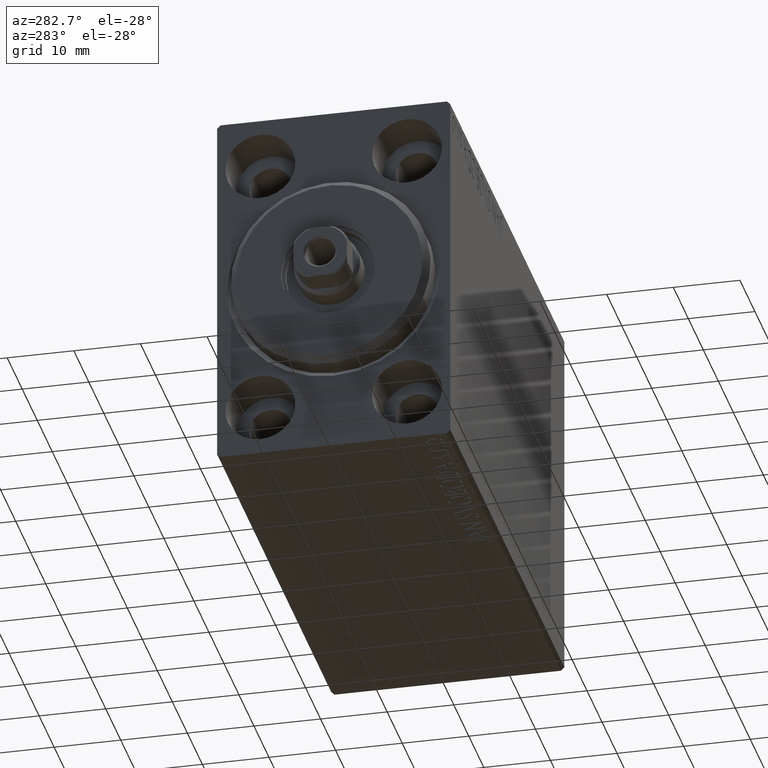
[diagram: clean part render]
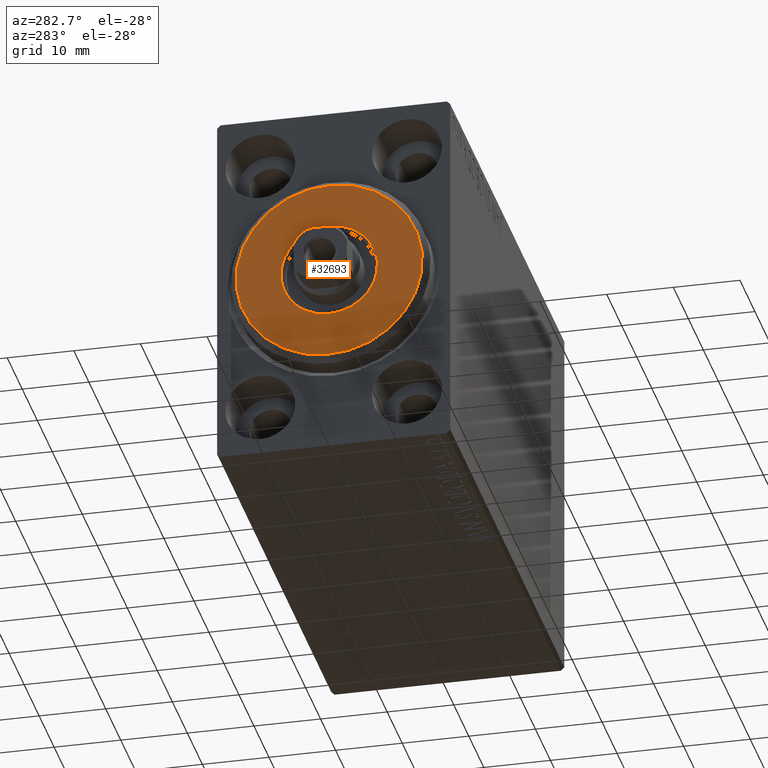
[diagram: same view with one face highlighted and labeled with its STEP entity id]
A machine part, auxiliary view. The second image highlights one B-rep face of the part: STEP entity #32693.
In plain terms, the highlighted planar face has unit normal (-1, 0, 0).
Its self-contained STEP definition (entity closure, byte-faithful):
#3 = CARTESIAN_POINT ( 'NONE',  ( 3.000000000000000000, 0.000000000000000000, 0.000000000000000000 ) ) ;
#396 = DIRECTION ( 'NONE',  ( 1.000000000000000000, -0.000000000000000000, 0.000000000000000000 ) ) ;
#2650 = ORIENTED_EDGE ( 'NONE', *, *, #21428, .T. ) ;
#3302 = EDGE_LOOP ( 'NONE', ( #18502, #29474 ) ) ;
#3816 = VERTEX_POINT ( 'NONE', #20330 ) ;
#3940 = FACE_BOUND ( 'NONE', #3302, .T. ) ;
#4500 = CARTESIAN_POINT ( 'NONE',  ( 3.000000000000000000, 8.878689293818310074E-16, 7.249999999999999112 ) ) ;
#4746 = DIRECTION ( 'NONE',  ( 1.000000000000000000, 0.000000000000000000, 0.000000000000000000 ) ) ;
#5832 = AXIS2_PLACEMENT_3D ( 'NONE', #3, #23322, #33949 ) ;
#7211 = CIRCLE ( 'NONE', #34139, 13.99999999999999645 ) ;
#9997 = VERTEX_POINT ( 'NONE', #4500 ) ;
#13749 = CARTESIAN_POINT ( 'NONE',  ( 3.000000000000000000, 0.000000000000000000, 0.000000000000000000 ) ) ;
#14147 = CARTESIAN_POINT ( 'NONE',  ( 3.000000000000000000, 0.000000000000000000, 0.000000000000000000 ) ) ;
#14338 = CIRCLE ( 'NONE', #5832, 7.249999999999999112 ) ;
#14368 = DIRECTION ( 'NONE',  ( 0.000000000000000000, 0.000000000000000000, -1.000000000000000000 ) ) ;
#14400 = AXIS2_PLACEMENT_3D ( 'NONE', #14627, #42359, #21736 ) ;
#14627 = CARTESIAN_POINT ( 'NONE',  ( 3.000000000000000000, 0.000000000000000000, 0.000000000000000000 ) ) ;
#15602 = CARTESIAN_POINT ( 'NONE',  ( 3.000000000000000000, 1.775737858763662015E-15, -13.99999999999999645 ) ) ;
#17320 = EDGE_CURVE ( 'NONE', #20609, #9997, #22114, .T. ) ;
#17775 = EDGE_CURVE ( 'NONE', #3816, #24592, #7211, .T. ) ;
#18051 = CARTESIAN_POINT ( 'NONE',  ( 3.000000000000000000, 0.000000000000000000, 0.000000000000000000 ) ) ;
#18502 = ORIENTED_EDGE ( 'NONE', *, *, #17320, .F. ) ;
#19148 = EDGE_CURVE ( 'NONE', #9997, #20609, #14338, .T. ) ;
#19675 = CARTESIAN_POINT ( 'NONE',  ( 3.000000000000000000, 0.000000000000000000, -7.249999999999999112 ) ) ;
#20330 = CARTESIAN_POINT ( 'NONE',  ( 3.000000000000000000, 0.000000000000000000, 13.99999999999999645 ) ) ;
#20591 = PLANE ( 'NONE',  #25947 ) ;
#20609 = VERTEX_POINT ( 'NONE', #19675 ) ;
#21428 = EDGE_CURVE ( 'NONE', #24592, #3816, #34227, .T. ) ;
#21736 = DIRECTION ( 'NONE',  ( 0.000000000000000000, 0.000000000000000000, -1.000000000000000000 ) ) ;
#22114 = CIRCLE ( 'NONE', #38380, 7.249999999999999112 ) ;
#22499 = ORIENTED_EDGE ( 'NONE', *, *, #17775, .T. ) ;
#23322 = DIRECTION ( 'NONE',  ( 1.000000000000000000, 0.000000000000000000, 0.000000000000000000 ) ) ;
#24291 = DIRECTION ( 'NONE',  ( 0.000000000000000000, 0.000000000000000000, -1.000000000000000000 ) ) ;
#24401 = DIRECTION ( 'NONE',  ( 1.000000000000000000, -0.000000000000000000, 0.000000000000000000 ) ) ;
#24592 = VERTEX_POINT ( 'NONE', #15602 ) ;
#25947 = AXIS2_PLACEMENT_3D ( 'NONE', #14147, #396, #14368 ) ;
#27716 = DIRECTION ( 'NONE',  ( 0.000000000000000000, 0.000000000000000000, -1.000000000000000000 ) ) ;
#29474 = ORIENTED_EDGE ( 'NONE', *, *, #19148, .F. ) ;
#30804 = FACE_OUTER_BOUND ( 'NONE', #34636, .T. ) ;
#32693 = ADVANCED_FACE ( 'NONE', ( #30804, #3940 ), #20591, .T. ) ;
#33949 = DIRECTION ( 'NONE',  ( 0.000000000000000000, 0.000000000000000000, -1.000000000000000000 ) ) ;
#34139 = AXIS2_PLACEMENT_3D ( 'NONE', #13749, #24401, #27716 ) ;
#34227 = CIRCLE ( 'NONE', #14400, 13.99999999999999645 ) ;
#34636 = EDGE_LOOP ( 'NONE', ( #22499, #2650 ) ) ;
#38380 = AXIS2_PLACEMENT_3D ( 'NONE', #18051, #4746, #24291 ) ;
#42359 = DIRECTION ( 'NONE',  ( 1.000000000000000000, -0.000000000000000000, 0.000000000000000000 ) ) ;